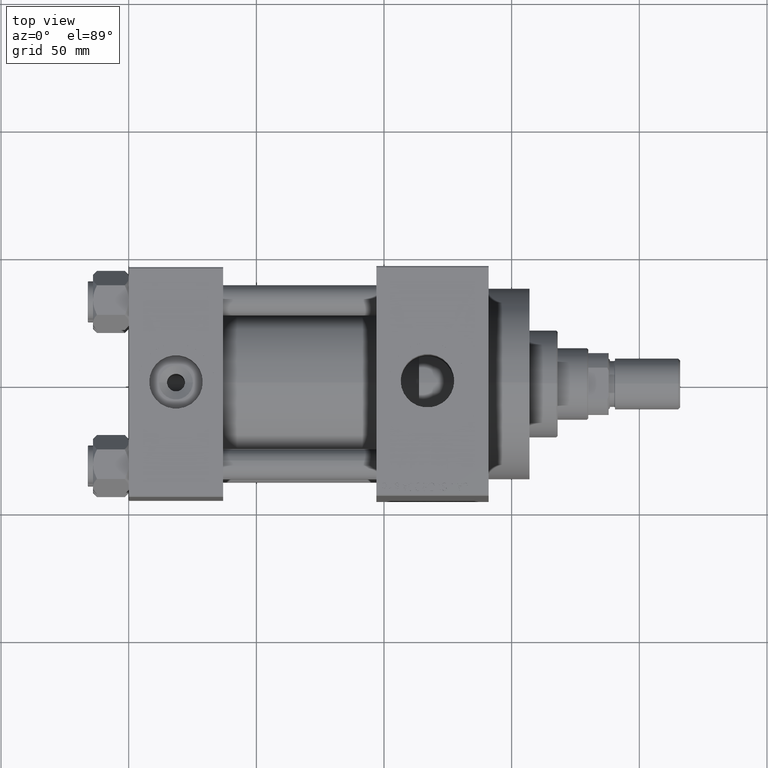
[diagram: clean part render]
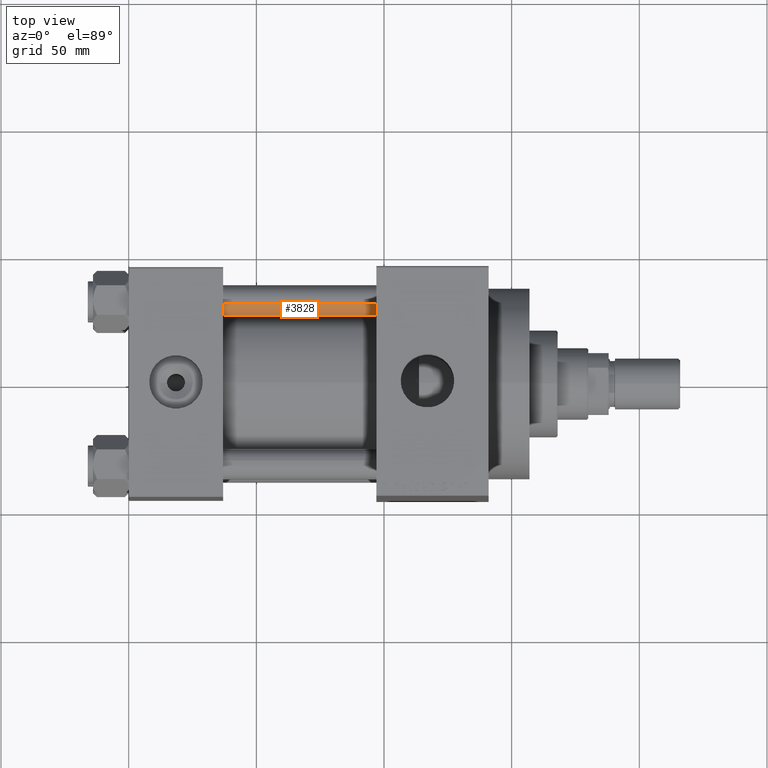
[diagram: same view with one face highlighted and labeled with its STEP entity id]
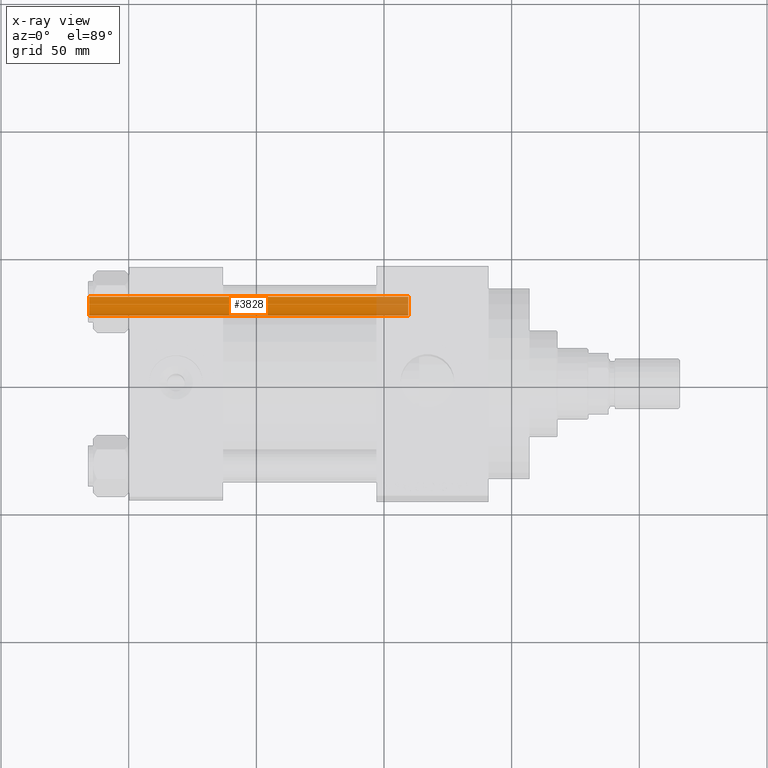
[diagram: x-ray of the same camera — body ghosted, the highlighted face saturated]
A machine part, top view. The second image highlights one B-rep face of the part: STEP entity #3828.
The next image is the same camera in x-ray: the body ghosted, the highlighted face saturated — about 10% of this face is hidden behind the body in this view.
In plain terms, the highlighted cylindrical surface (edge-blend (fillet) strip) has radius 6 mm, axis along (-1, -0, 0).
Its self-contained STEP definition (entity closure, byte-faithful):
#1372 = LINE ( 'NONE', #30783, #43907 ) ;
#2153 = CARTESIAN_POINT ( 'NONE',  ( 6.000000000000000888, 7.347880794884120722E-16, 0.5000000000000004441 ) ) ;
#2427 = VERTEX_POINT ( 'NONE', #2800 ) ;
#2800 = CARTESIAN_POINT ( 'NONE',  ( -6.000000000000000888, 0.000000000000000000, 125.5000000000000000 ) ) ;
#3067 = VERTEX_POINT ( 'NONE', #15846 ) ;
#3828 = ADVANCED_FACE ( 'NONE', ( #41636 ), #37306, .T. ) ;
#4342 = CARTESIAN_POINT ( 'NONE',  ( 0.000000000000000000, 0.000000000000000000, 125.5000000000000000 ) ) ;
#8300 = CARTESIAN_POINT ( 'NONE',  ( 6.000000000000000888, 7.347880794884120722E-16, 126.0000000000000000 ) ) ;
#8896 = VECTOR ( 'NONE', #22995, 1000.000000000000000 ) ;
#9643 = ORIENTED_EDGE ( 'NONE', *, *, #20489, .F. ) ;
#10130 = EDGE_LOOP ( 'NONE', ( #9643, #20414, #36613, #44928 ) ) ;
#10238 = CIRCLE ( 'NONE', #46398, 6.000000000000000888 ) ;
#11083 = EDGE_CURVE ( 'NONE', #3067, #13174, #38476, .T. ) ;
#11772 = DIRECTION ( 'NONE',  ( -1.000000000000000000, 0.000000000000000000, 0.000000000000000000 ) ) ;
#12148 = EDGE_CURVE ( 'NONE', #2427, #3067, #1372, .T. ) ;
#12492 = DIRECTION ( 'NONE',  ( -0.000000000000000000, -0.000000000000000000, -1.000000000000000000 ) ) ;
#13174 = VERTEX_POINT ( 'NONE', #2153 ) ;
#13789 = AXIS2_PLACEMENT_3D ( 'NONE', #33933, #12492, #11772 ) ;
#15846 = CARTESIAN_POINT ( 'NONE',  ( -6.000000000000000888, 0.000000000000000000, 0.5000000000000004441 ) ) ;
#16957 = EDGE_CURVE ( 'NONE', #21681, #2427, #10238, .T. ) ;
#20414 = ORIENTED_EDGE ( 'NONE', *, *, #16957, .T. ) ;
#20489 = EDGE_CURVE ( 'NONE', #21681, #13174, #41313, .T. ) ;
#20685 = CARTESIAN_POINT ( 'NONE',  ( 6.000000000000000888, 7.347880794884120722E-16, 125.5000000000000000 ) ) ;
#21681 = VERTEX_POINT ( 'NONE', #20685 ) ;
#22995 = DIRECTION ( 'NONE',  ( -0.000000000000000000, -0.000000000000000000, -1.000000000000000000 ) ) ;
#23779 = DIRECTION ( 'NONE',  ( 1.000000000000000000, 0.000000000000000000, 0.000000000000000000 ) ) ;
#30783 = CARTESIAN_POINT ( 'NONE',  ( -6.000000000000000888, 0.000000000000000000, 126.0000000000000000 ) ) ;
#31503 = CARTESIAN_POINT ( 'NONE',  ( 0.000000000000000000, 0.000000000000000000, 0.5000000000000004441 ) ) ;
#32802 = DIRECTION ( 'NONE',  ( 0.000000000000000000, 0.000000000000000000, -1.000000000000000000 ) ) ;
#33933 = CARTESIAN_POINT ( 'NONE',  ( 0.000000000000000000, 0.000000000000000000, 126.0000000000000000 ) ) ;
#35344 = DIRECTION ( 'NONE',  ( -0.000000000000000000, -0.000000000000000000, 1.000000000000000000 ) ) ;
#36415 = DIRECTION ( 'NONE',  ( 1.000000000000000000, 0.000000000000000000, 0.000000000000000000 ) ) ;
#36613 = ORIENTED_EDGE ( 'NONE', *, *, #12148, .T. ) ;
#37306 = CYLINDRICAL_SURFACE ( 'NONE', #13789, 6.000000000000000888 ) ;
#38476 = CIRCLE ( 'NONE', #44640, 6.000000000000000888 ) ;
#41313 = LINE ( 'NONE', #8300, #8896 ) ;
#41636 = FACE_OUTER_BOUND ( 'NONE', #10130, .T. ) ;
#43907 = VECTOR ( 'NONE', #45484, 1000.000000000000000 ) ;
#44640 = AXIS2_PLACEMENT_3D ( 'NONE', #31503, #35344, #23779 ) ;
#44928 = ORIENTED_EDGE ( 'NONE', *, *, #11083, .T. ) ;
#45484 = DIRECTION ( 'NONE',  ( -0.000000000000000000, -0.000000000000000000, -1.000000000000000000 ) ) ;
#46398 = AXIS2_PLACEMENT_3D ( 'NONE', #4342, #32802, #36415 ) ;